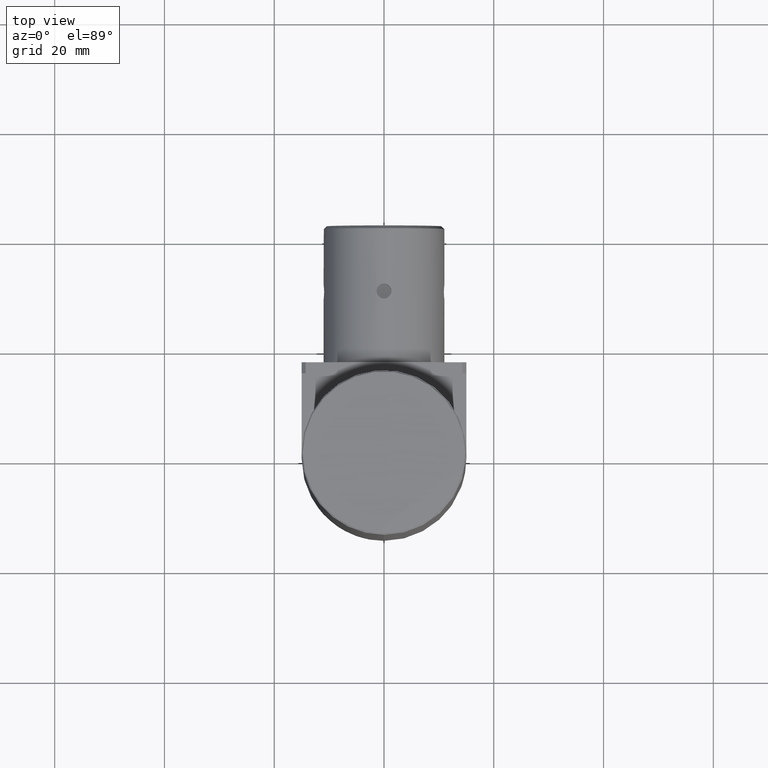
[diagram: clean part render]
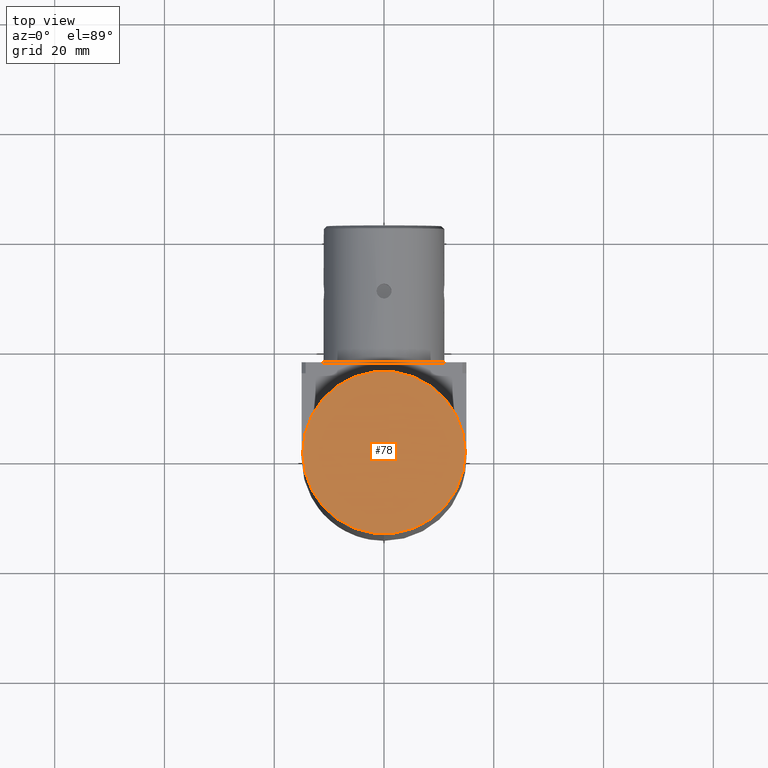
[diagram: same view with one face highlighted and labeled with its STEP entity id]
A machine part, top view. The second image highlights one B-rep face of the part: STEP entity #78.
In plain terms, the highlighted planar face has unit normal (-0, -0, -1).
Its self-contained STEP definition (entity closure, byte-faithful):
#40 = DIRECTION ( 'NONE',  ( -1.000000000000000000, 0.000000000000000000, 0.000000000000000000 ) ) ;
#78 = ADVANCED_FACE ( 'NONE', ( #1418 ), #3866, .F. ) ;
#379 = CARTESIAN_POINT ( 'NONE',  ( 0.000000000000000000, 6.053650762124575741E-07, -63.00000000000000000 ) ) ;
#783 = DIRECTION ( 'NONE',  ( 0.000000000000000000, 1.000000000000000000, -1.387778780781445676E-16 ) ) ;
#1418 = FACE_OUTER_BOUND ( 'NONE', #2938, .T. ) ;
#1508 = CIRCLE ( 'NONE', #3325, 14.80000000000001492 ) ;
#1820 = AXIS2_PLACEMENT_3D ( 'NONE', #1978, #3563, #783 ) ;
#1978 = CARTESIAN_POINT ( 'NONE',  ( 7.644590611995300330E-16, 13.75000060536507895, -63.00000000000000000 ) ) ;
#2011 = EDGE_CURVE ( 'NONE', #4020, #4020, #1508, .T. ) ;
#2341 = ORIENTED_EDGE ( 'NONE', *, *, #2011, .F. ) ;
#2938 = EDGE_LOOP ( 'NONE', ( #2341 ) ) ;
#3325 = AXIS2_PLACEMENT_3D ( 'NONE', #379, #3479, #40 ) ;
#3479 = DIRECTION ( 'NONE',  ( 0.000000000000000000, 0.000000000000000000, -1.000000000000000000 ) ) ;
#3563 = DIRECTION ( 'NONE',  ( -4.365703198835896241E-18, -1.387778780781445676E-16, -1.000000000000000000 ) ) ;
#3866 = PLANE ( 'NONE',  #1820 ) ;
#4001 = CARTESIAN_POINT ( 'NONE',  ( -14.80000000000001492, 6.053650762124575741E-07, -63.00000000000000000 ) ) ;
#4020 = VERTEX_POINT ( 'NONE', #4001 ) ;